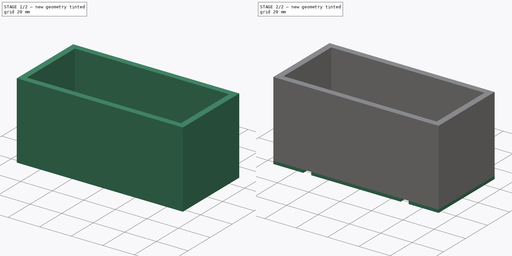
[diagram: build sequence overview — one tinted view per stage of 2, left to right]
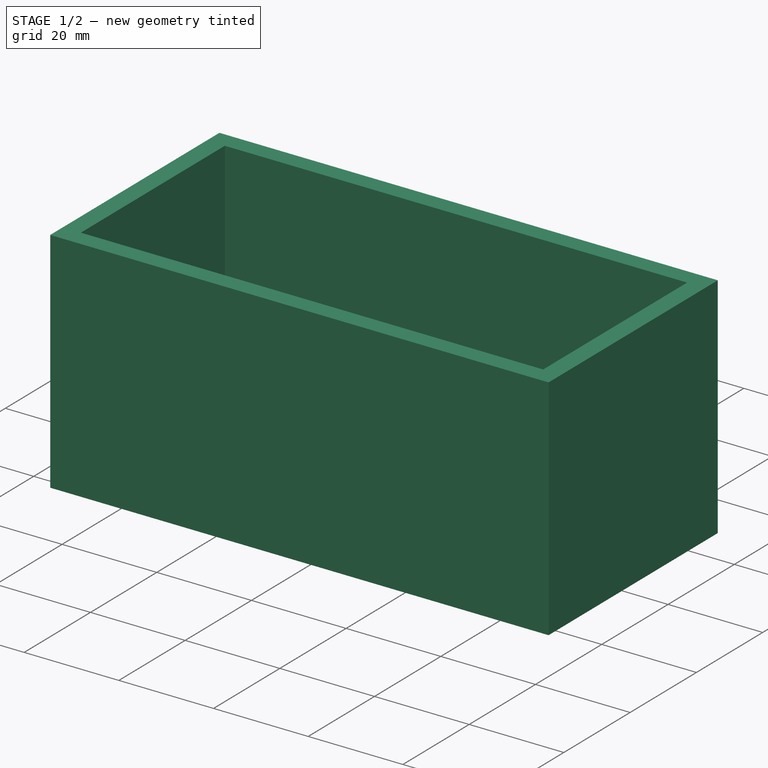
[diagram: stage 1 of 2 — iso view after this stage's code; geometry added in this stage tinted green]
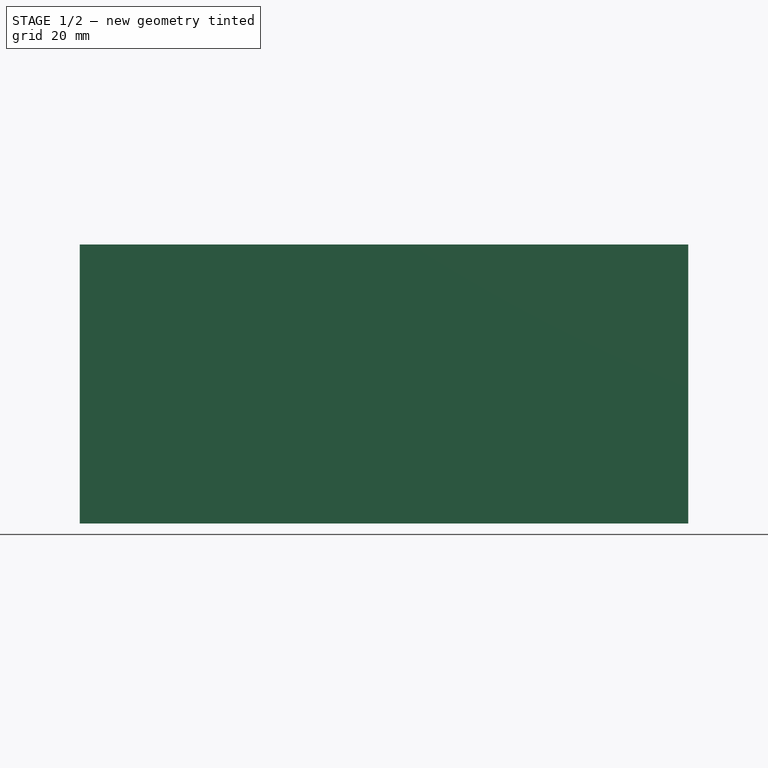
[diagram: stage 1 of 2 — front view after this stage's code; geometry added in this stage tinted green]
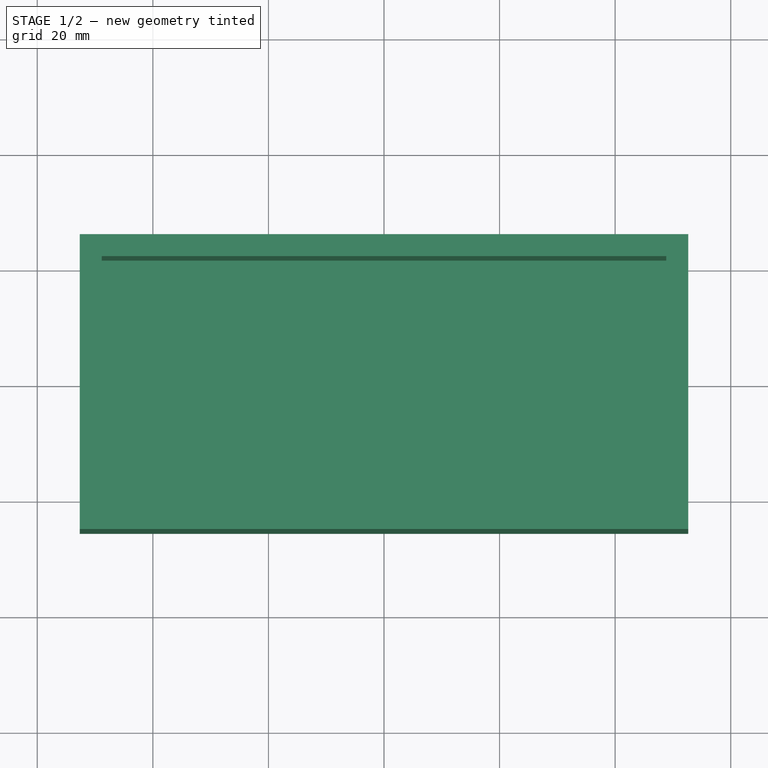
[diagram: stage 1 of 2 — top view after this stage's code; geometry added in this stage tinted green]
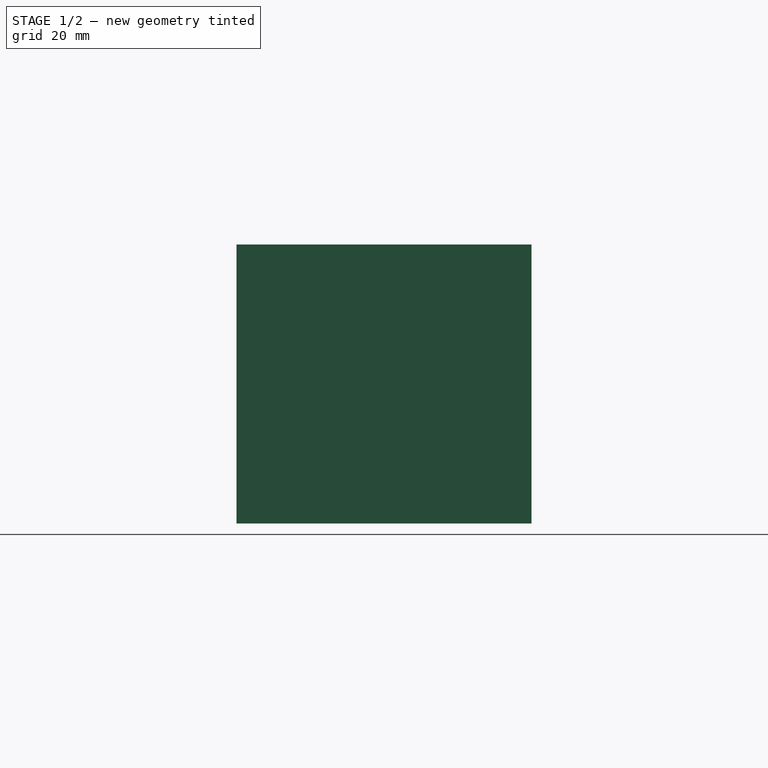
[diagram: stage 1 of 2 — right view after this stage's code; geometry added in this stage tinted green]
FCSTD DOCUMENT  (FreeCAD 0.21R31917 (Git))
Label: batery box
License: All rights reserved
LicenseURL: http://en.wikipedia.org/wiki/All_rights_reserved
objects: Sketcher::SketchObject×4, PartDesign::Pad×3, PartDesign::Hole×1, PartDesign::Body×1
note: 13 computed .brp shape members not serialized (recipe doc carries the construction recipe); baked Part::Feature solids carry a one-line shape summary decoded from their .brp

FEATURE [Sketcher::SketchObject] Sketch  label="Walls"
  FullyConstrained = true
  MapMode = 5
  Support = -> [XY_Plane]
  expr: Constraints[10] = <<BatteryBase>>.Constraints.BatteryWidth
  expr: Constraints[11] = <<BatteryBase>>.Constraints.BatteryLength
  sketch-geometry (13):
    g0: LineSegment StartX=-48.8315 StartY=-21.717 StartZ=0 EndX=-48.8315 EndY=21.717 EndZ=0
    g1: LineSegment StartX=-48.8315 StartY=21.717 StartZ=0 EndX=48.8315 EndY=21.717 EndZ=0
    g2: LineSegment StartX=48.8315 StartY=21.717 StartZ=0 EndX=48.8315 EndY=-21.717 EndZ=0
    g3: LineSegment StartX=48.8315 StartY=-21.717 StartZ=0 EndX=-48.8315 EndY=-21.717 EndZ=0
    g4: GeomPoint X=0 Y=0 Z=0
    g5: LineSegment StartX=-52.6415 StartY=-25.527 StartZ=0 EndX=-52.6415 EndY=25.527 EndZ=0
    g6: LineSegment StartX=-52.6415 StartY=25.527 StartZ=0 EndX=52.6415 EndY=25.527 EndZ=0
    g7: LineSegment StartX=52.6415 StartY=25.527 StartZ=0 EndX=52.6415 EndY=-25.527 EndZ=0
    g8: LineSegment StartX=52.6415 StartY=-25.527 StartZ=0 EndX=-52.6415 EndY=-25.527 EndZ=0
    g9: GeomPoint X=0 Y=0 Z=0
    g10: LineSegment StartX=48.8315 StartY=21.717 StartZ=0 EndX=48.8315 EndY=25.527 EndZ=0
    g11: LineSegment StartX=48.8315 StartY=21.717 StartZ=0 EndX=52.6415 EndY=21.717 EndZ=0
    g12: GeomPoint X=0 Y=0 Z=0
  constraints (31):
    c: Coincident(g0,g1)
    c: Coincident(g1,g2)
    c: Coincident(g2,g3)
    c: Coincident(g3,g0)
    c: Horizontal(g1)
    c: Horizontal(g3)
    c: Vertical(g0)
    c: Vertical(g2)
    c: Symmetric(g1,g0,g4)
    c: Coincident(g4,g-1)
    c: DistanceY(g2,g1) = 43.434
    c: DistanceX(g0,g2) = 97.663
    c: Coincident(g5,g6)
    c: Coincident(g6,g7)
    c: Coincident(g7,g8)
    c: Coincident(g8,g5)
    c: Horizontal(g6)
    c: Horizontal(g8)
    c: Vertical(g5)
    c: Vertical(g7)
    c: Symmetric(g6,g5,g9)
    c: Coincident(g9,g4)
    c: DistanceY(g1,g6) = 3.81  'WallThickness'
    c: Coincident(g10,g1)
    c: PointOnObject(g10,g6)
    c: Vertical(g10)
    c: Coincident(g11,g1)
    c: PointOnObject(g11,g7)
    c: Horizontal(g11)
    c: Equal(g11,g10)
    c: Coincident(g12,g4)
FEATURE [Sketcher::SketchObject] Sketch001  label="BatteryBase"
  FullyConstrained = true
  MapMode = 5
  Support = -> [XY_Plane]
  sketch-geometry (6):
    g0: LineSegment StartX=-48.8315 StartY=-21.717 StartZ=0 EndX=-48.8315 EndY=21.717 EndZ=0
    g1: LineSegment StartX=-48.8315 StartY=21.717 StartZ=0 EndX=48.8315 EndY=21.717 EndZ=0
    g2: LineSegment StartX=48.8315 StartY=21.717 StartZ=0 EndX=48.8315 EndY=-21.717 EndZ=0
    g3: LineSegment StartX=48.8315 StartY=-21.717 StartZ=0 EndX=-48.8315 EndY=-21.717 EndZ=0
    g4: GeomPoint X=0 Y=0 Z=0
    g5: GeomPoint X=0 Y=0 Z=0
  constraints (13):
    c: Coincident(g0,g1)
    c: Coincident(g1,g2)
    c: Coincident(g2,g3)
    c: Coincident(g3,g0)
    c: Horizontal(g1)
    c: Horizontal(g3)
    c: Vertical(g0)
    c: Vertical(g2)
    c: Symmetric(g1,g0,g4)
    c: Coincident(g4,g-1)
    c: DistanceX(g0,g1) = 97.663  'BatteryLength'
    c: DistanceY(g2,g1) = 43.434  'BatteryWidth'
    c: Coincident(g5,g4)
FEATURE [PartDesign::Pad] Pad  label="Base"
  Direction = (0,0,1)
  Length = 3.81
  Length2 = 10
  Profile = -> Sketch001
  ReferenceAxis = -> Sketch001 [N_Axis]
  Type = 0
  expr: Length = <<Walls>>.Constraints.WallThickness
FEATURE [PartDesign::Pad] Pad001  label="WallsPad"
  BaseFeature = -> Pad
  Direction = (0,0,1)
  Length = 48.26
  Length2 = 1.905
  Profile = -> Sketch
  ReferenceAxis = -> Sketch [N_Axis]
  Type = 0
  expr: Length = 1.75in + <<Walls>>.Constraints.WallThickness
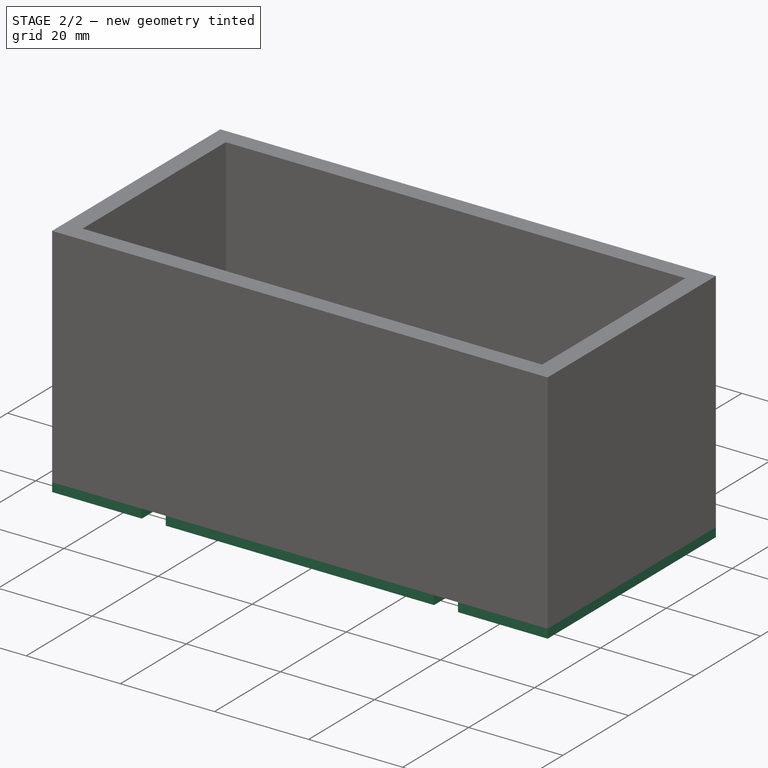
[diagram: stage 2 of 2 — iso view after this stage's code; geometry added in this stage tinted green]
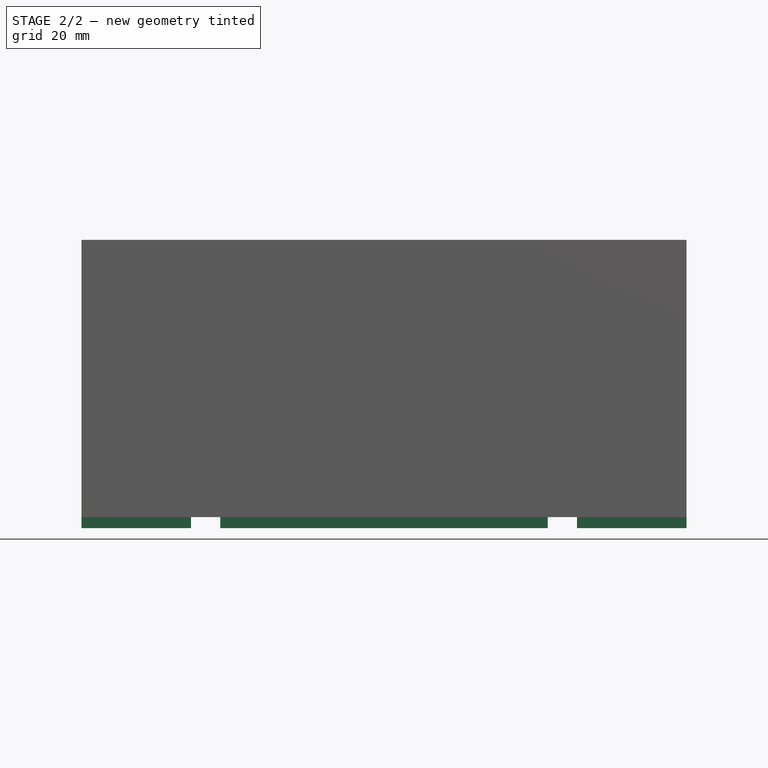
[diagram: stage 2 of 2 — front view after this stage's code; geometry added in this stage tinted green]
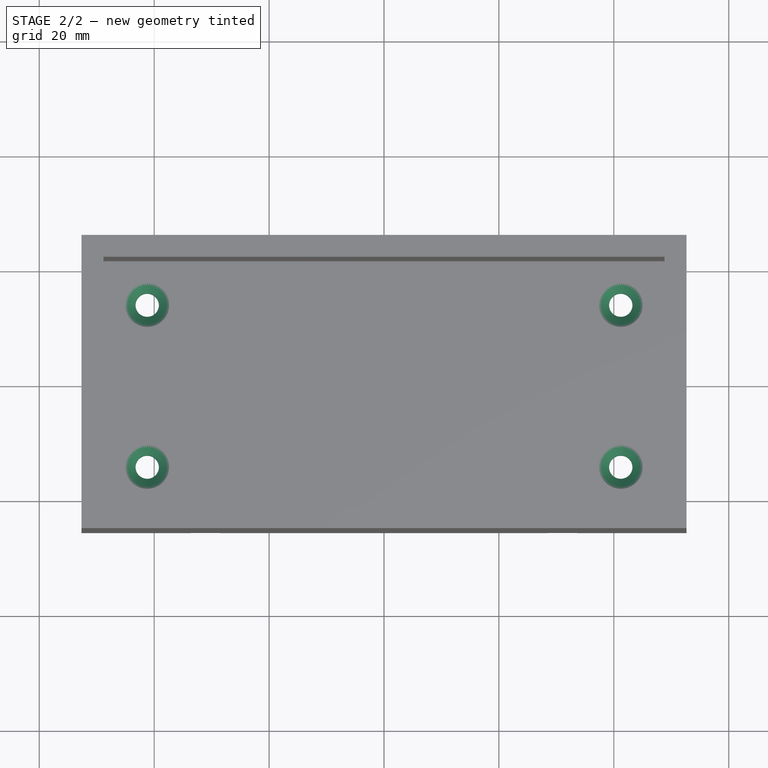
[diagram: stage 2 of 2 — top view after this stage's code; geometry added in this stage tinted green]
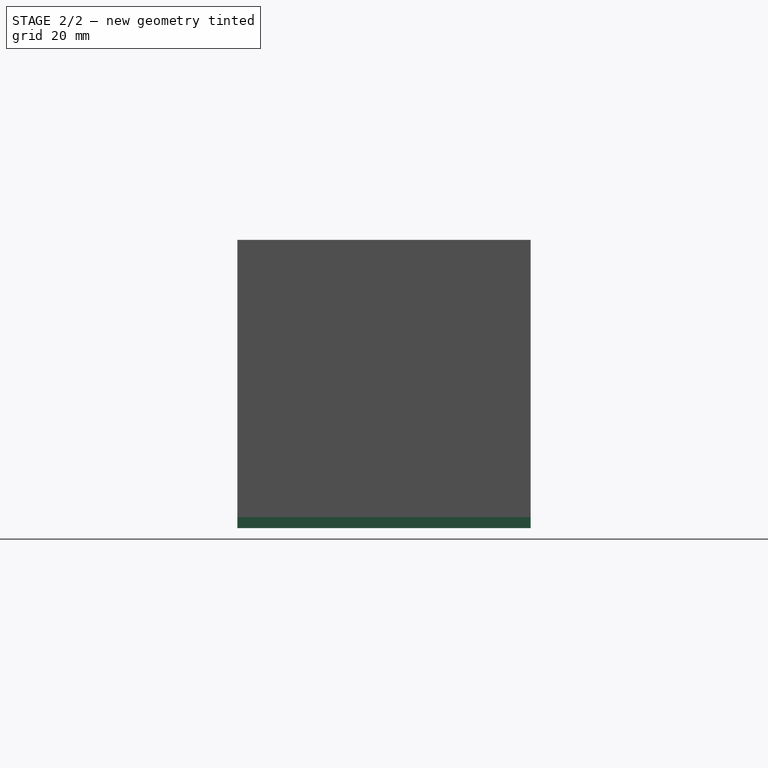
[diagram: stage 2 of 2 — right view after this stage's code; geometry added in this stage tinted green]
FEATURE [Sketcher::SketchObject] Sketch002  label="Holes"
  AttachmentOffset = pos=(0,0,3.81) rot=(0,0,1;0rad)
  FullyConstrained = true
  MapMode = 5
  Placement = pos=(0,0,3.81) rot=(0,0,1;0rad)
  Support = -> [XY_Plane]
  expr: .AttachmentOffset.Base.z = <<Base>>.Length
  expr: Constraints[20] = <<BatteryBase>>.Constraints.BatteryLength
  expr: Constraints[21] = <<BatteryBase>>.Constraints.BatteryWidth
  sketch-geometry (16):
    g0: LineSegment StartX=-48.8315 StartY=-21.717 StartZ=0 EndX=-48.8315 EndY=21.717 EndZ=0
    g1: LineSegment StartX=-48.8315 StartY=21.717 StartZ=0 EndX=48.8315 EndY=21.717 EndZ=0
    g2: LineSegment StartX=48.8315 StartY=21.717 StartZ=0 EndX=48.8315 EndY=-21.717 EndZ=0
    g3: LineSegment StartX=48.8315 StartY=-21.717 StartZ=0 EndX=-48.8315 EndY=-21.717 EndZ=0
    g4: GeomPoint X=0 Y=0 Z=0
    g5: LineSegment StartX=-41.2115 StartY=-14.097 StartZ=0 EndX=-41.2115 EndY=14.097 EndZ=0
    g6: LineSegment StartX=-41.2115 StartY=14.097 StartZ=0 EndX=41.2115 EndY=14.097 EndZ=0
    g7: LineSegment StartX=41.2115 StartY=14.097 StartZ=0 EndX=41.2115 EndY=-14.097 EndZ=0
    g8: LineSegment StartX=41.2115 StartY=-14.097 StartZ=0 EndX=-41.2115 EndY=-14.097 EndZ=0
    g9: GeomPoint X=0 Y=0 Z=0
    g10: LineSegment StartX=41.2115 StartY=14.097 StartZ=0 EndX=48.8315 EndY=14.097 EndZ=0
    g11: LineSegment StartX=41.2115 StartY=14.097 StartZ=0 EndX=41.2115 EndY=21.717 EndZ=0
    g12: Circle CenterX=41.2115 CenterY=14.097 CenterZ=0 NormalX=0 NormalY=0 NormalZ=1 AngleXU=0 Radius=2.032
    g13: Circle CenterX=41.2115 CenterY=-14.097 CenterZ=0 NormalX=0 NormalY=0 NormalZ=1 AngleXU=0 Radius=2.032
    g14: Circle CenterX=-41.2115 CenterY=-14.097 CenterZ=0 NormalX=0 NormalY=0 NormalZ=1 AngleXU=0 Radius=2.032
    g15: Circle CenterX=-41.2115 CenterY=14.097 CenterZ=0 NormalX=0 NormalY=0 NormalZ=1 AngleXU=0 Radius=2.032
  constraints (38):
    c: Coincident(g0,g1)
    c: Coincident(g1,g2)
    c: Coincident(g2,g3)
    c: Coincident(g3,g0)
    c: Horizontal(g1)
    c: Horizontal(g3)
    c: Vertical(g0)
    c: Vertical(g2)
    c: Symmetric(g1,g0,g4)
    c: Coincident(g4,g-1)
    c: Coincident(g5,g6)
    c: Coincident(g6,g7)
    c: Coincident(g7,g8)
    c: Coincident(g8,g5)
    c: Horizontal(g6)
    c: Horizontal(g8)
    c: Vertical(g5)
    c: Vertical(g7)
    c: Symmetric(g6,g5,g9)
    c: Coincident(g9,g4)
    c: DistanceX(g0,g1) = 97.663
    c: DistanceY(g2,g1) = 43.434
    c: Coincident(g10,g6)
    c: PointOnObject(g10,g2)
    c: Horizontal(g10)
    c: Coincident(g11,g6)
    c: PointOnObject(g11,g1)
    c: Vertical(g11)
    c: Equal(g10,g11)
    c: DistanceX(g6,g10) = 7.62
    c: Coincident(g12,g6)
    c: Coincident(g13,g7)
    c: Coincident(g14,g5)
    c: Coincident(g15,g5)
    c: Equal(g15,g14)
    c: Equal(g14,g13)
    c: Equal(g13,g12)
    c: Diameter(g13) = 4.064  'HoleDia'
FEATURE [Sketcher::SketchObject] Sketch003  label="ZipTieChannels"
  FullyConstrained = true
  MapMode = 5
  Support = -> [XY_Plane]
  expr: Constraints[10] = <<BatteryBase>>.Constraints.BatteryWidth + <<Walls>>.Constraints.WallThickness * 2
  expr: Constraints[11] = <<BatteryBase>>.Constraints.BatteryLength + <<Walls>>.Constraints.WallThickness * 2
  sketch-geometry (16):
    g0: LineSegment StartX=-52.6415 StartY=-25.527 StartZ=0 EndX=-52.6415 EndY=25.527 EndZ=0
    g1: LineSegment StartX=-52.6415 StartY=25.527 StartZ=0 EndX=52.6415 EndY=25.527 EndZ=0
    g2: LineSegment StartX=52.6415 StartY=25.527 StartZ=0 EndX=52.6415 EndY=-25.527 EndZ=0
    g3: LineSegment StartX=52.6415 StartY=-25.527 StartZ=0 EndX=-52.6415 EndY=-25.527 EndZ=0
    g4: GeomPoint X=0 Y=0 Z=0
    g5: GeomPoint X=0 Y=0 Z=0
    g6: LineSegment StartX=-52.6415 StartY=25.527 StartZ=0 EndX=-33.5915 EndY=25.527 EndZ=0
    g7: LineSegment StartX=-33.5915 StartY=25.527 StartZ=0 EndX=-33.5915 EndY=-25.527 EndZ=0
    g8: LineSegment StartX=-33.5915 StartY=-25.527 StartZ=0 EndX=-52.6415 EndY=-25.527 EndZ=0
    g9: LineSegment StartX=52.6415 StartY=25.527 StartZ=0 EndX=33.5915 EndY=25.527 EndZ=0
    g10: LineSegment StartX=33.5915 StartY=25.527 StartZ=0 EndX=33.5915 EndY=-25.527 EndZ=0
    g11: LineSegment StartX=33.5915 StartY=-25.527 StartZ=0 EndX=52.6415 EndY=-25.527 EndZ=0
    g12: LineSegment StartX=-28.5115 StartY=25.527 StartZ=0 EndX=28.5115 EndY=25.527 EndZ=0
    g13: LineSegment StartX=28.5115 StartY=25.527 StartZ=0 EndX=28.5115 EndY=-25.527 EndZ=0
    g14: LineSegment StartX=28.5115 StartY=-25.527 StartZ=0 EndX=-28.5115 EndY=-25.527 EndZ=0
    g15: LineSegment StartX=-28.5115 StartY=-25.527 StartZ=0 EndX=-28.5115 EndY=25.527 EndZ=0
  constraints (40):
    c: Coincident(g0,g1)
    c: Coincident(g1,g2)
    c: Coincident(g2,g3)
    c: Coincident(g3,g0)
    c: Horizontal(g1)
    c: Horizontal(g3)
    c: Vertical(g0)
    c: Vertical(g2)
    c: Symmetric(g1,g0,g4)
    c: Coincident(g4,g-1)
    c: DistanceY(g2,g1) = 51.054
    c: DistanceX(g0,g1) = 105.283
    c: Coincident(g5,g4)
    c: Coincident(g6,g0)
    c: PointOnObject(g6,g1)
    c: Coincident(g7,g6)
    c: PointOnObject(g7,g3)
    c: Vertical(g7)
    c: Coincident(g8,g7)
    c: Coincident(g8,g0)
    c: Coincident(g9,g1)
    c: PointOnObject(g9,g1)
    c: Coincident(g10,g9)
    c: PointOnObject(g10,g3)
    c: Vertical(g10)
    c: Coincident(g11,g10)
    c: Coincident(g11,g2)
    c: Equal(g9,g6)
    c: DistanceX(g6,g6) = 19.05
    c: Coincident(g12,g13)
    c: Coincident(g13,g14)
    c: Coincident(g14,g15)
    c: Coincident(g15,g12)
    c: Horizontal(g14)
    c: Vertical(g13)
    c: Vertical(g15)
    c: PointOnObject(g12,g1)
    c: PointOnObject(g13,g3)
    c: Symmetric(g12,g12,g-2)
    c: DistanceX(g6,g12) = 5.08
FEATURE [PartDesign::Pad] Pad002  label="ZipTieChannelsPad"
  BaseFeature = -> Pad001
  Direction = (0,0,1)
  Length = 1.905
  Length2 = 10
  Profile = -> Sketch003
  ReferenceAxis = -> Sketch003 [N_Axis]
  Reversed = true
  Type = 0
FEATURE [PartDesign::Hole] Hole
  BaseFeature = -> Pad002
  CustomThreadClearance = 0
  Depth = 24.9936
  DepthType = 0
  Diameter = 4.064
  DrillForDepth = false
  DrillPoint = 1
  DrillPointAngle = 118
  HoleCutCountersinkAngle = 90
  HoleCutCustomValues = false
  HoleCutDepth = 0
  HoleCutDiameter = 7.62
  HoleCutType = 2
  ModelThread = false
  Profile = -> Sketch002
  Tapered = false
  TaperedAngle = 90
  ThreadClass = 0
  ThreadDepth = 24.9936
  ThreadDepthType = 0
  ThreadDirection = 0
  ThreadFit = 0
  ThreadSize = 0
  ThreadType = 0
  Threaded = false
  UseCustomThreadClearance = false
FEATURE [PartDesign::Body] Body
  Group = -> [Sketch001,Sketch,Pad,Pad001,Sketch002,Sketch003,Pad002,Hole]
  Origin = -> Origin
  Tip = -> Hole
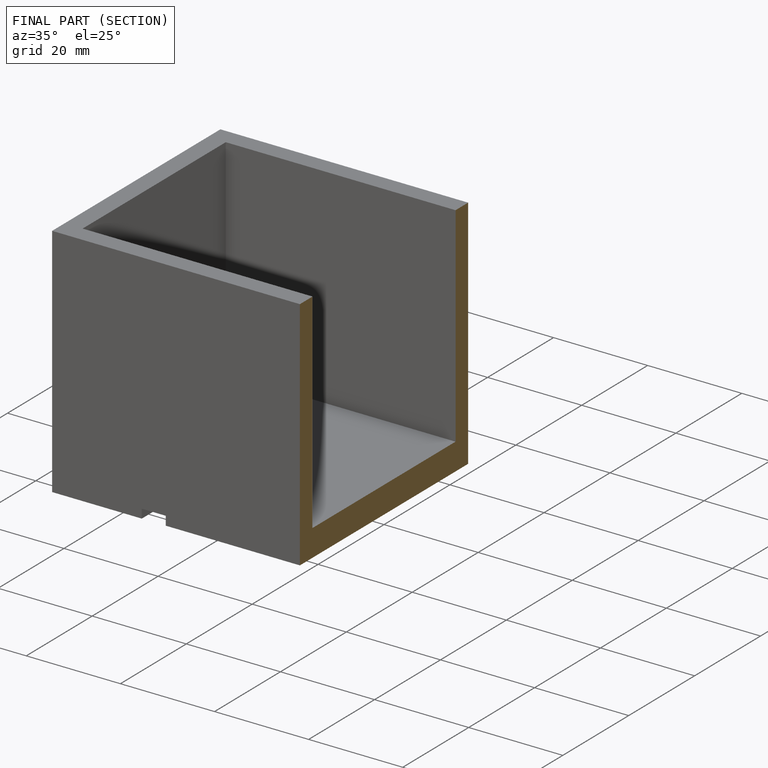
[diagram: finished part — half-section view (interior)]
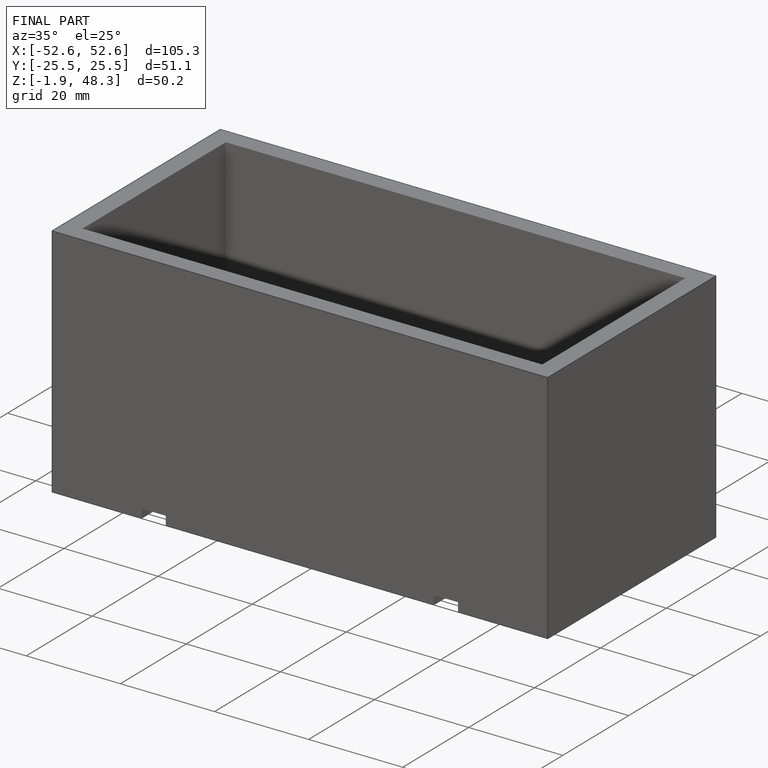
[diagram: finished part — iso view with bounding-box wireframe]
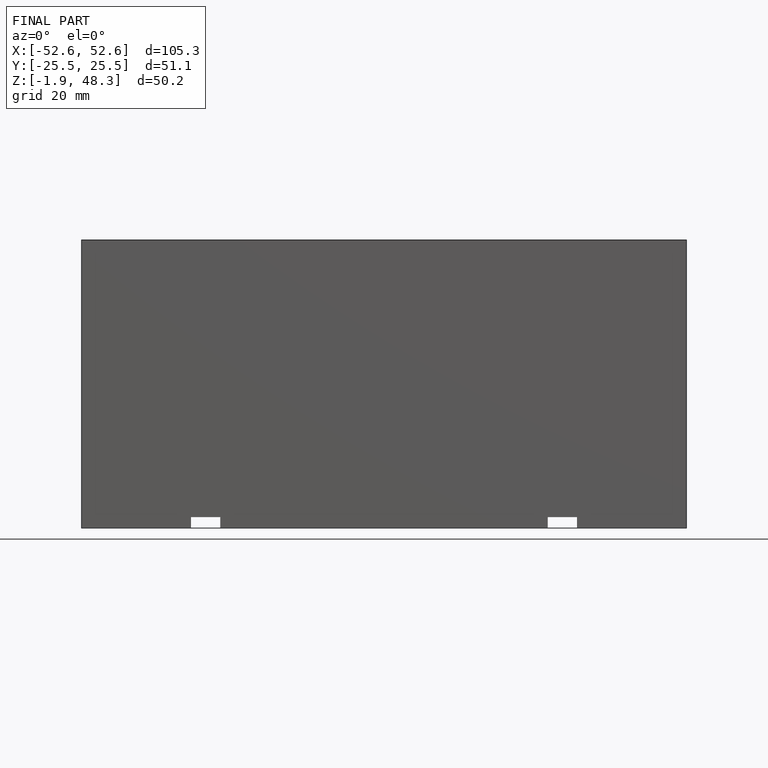
[diagram: finished part — front view with bounding-box wireframe]
